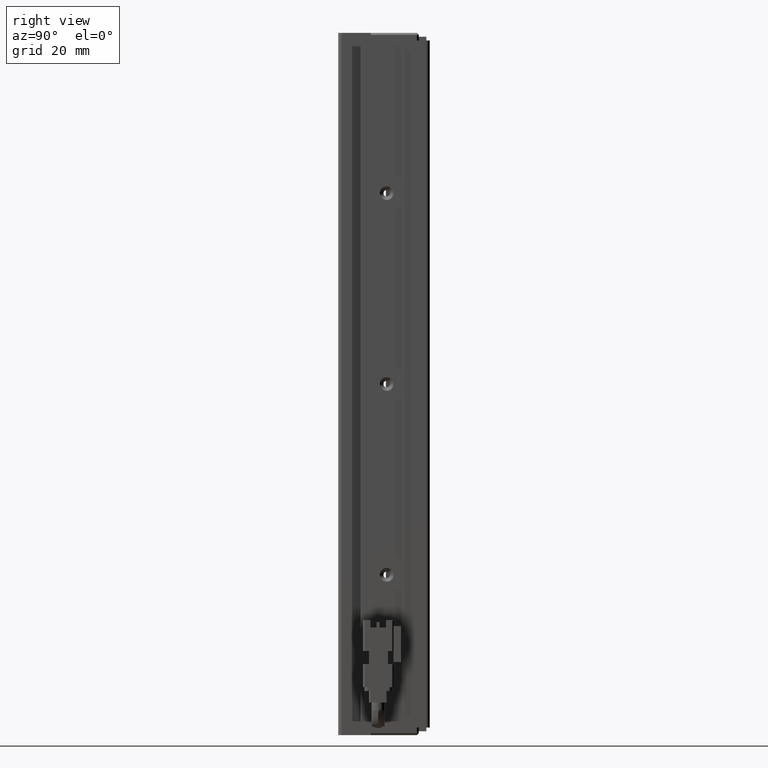
[diagram: clean part render]
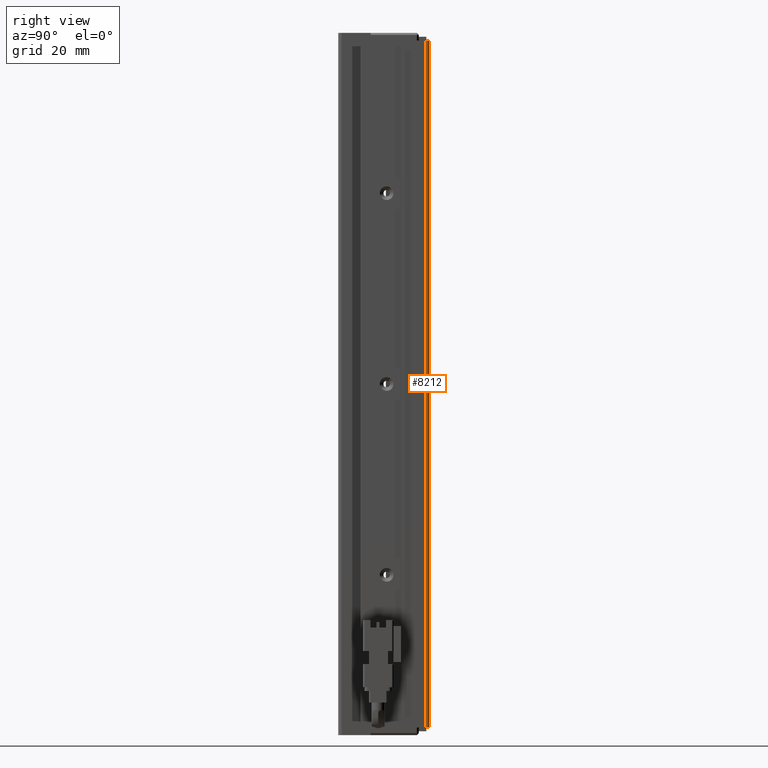
[diagram: same view with one face highlighted and labeled with its STEP entity id]
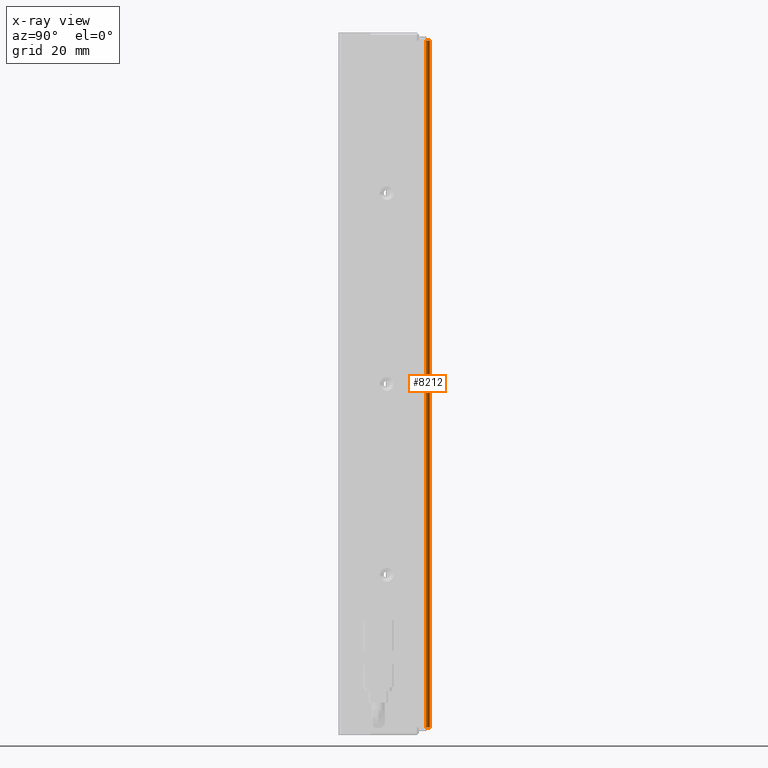
[diagram: x-ray of the same camera — body ghosted, the highlighted face saturated]
A machine part, right view. The second image highlights one B-rep face of the part: STEP entity #8212.
The next image is the same camera in x-ray: the body ghosted, the highlighted face saturated — about 0% of this face is hidden behind the body in this view.
In plain terms, the highlighted cylindrical surface (edge-blend (fillet) strip) has radius 1 mm, axis along (-0, -0, -1).
Its self-contained STEP definition (entity closure, byte-faithful):
#480 = EDGE_LOOP ( 'NONE', ( #24215, #38655, #7555, #39548 ) ) ;
#631 = VERTEX_POINT ( 'NONE', #47677 ) ;
#872 = DIRECTION ( 'NONE',  ( -0.0000000000000000000, -0.0000000000000000000, -1.000000000000000000 ) ) ;
#4918 = EDGE_CURVE ( 'NONE', #25126, #13030, #27752, .T. ) ;
#5937 = CARTESIAN_POINT ( 'NONE',  ( 50.42537974683541800, 34.99073232304837000, -23.00000000000000700 ) ) ;
#6364 = AXIS2_PLACEMENT_3D ( 'NONE', #23525, #38263, #46866 ) ;
#6668 = DIRECTION ( 'NONE',  ( -1.000000000000000000, 0.0000000000000000000, 0.0000000000000000000 ) ) ;
#7555 = ORIENTED_EDGE ( 'NONE', *, *, #36680, .T. ) ;
#8212 = ADVANCED_FACE ( 'NONE', ( #48094 ), #11819, .T. ) ;
#8758 = LINE ( 'NONE', #21711, #18146 ) ;
#11496 = CARTESIAN_POINT ( 'NONE',  ( 50.42537974683541800, 33.99073232304837000, -25.00000000000000700 ) ) ;
#11819 = CYLINDRICAL_SURFACE ( 'NONE', #6364, 1.000000000000000900 ) ;
#13030 = VERTEX_POINT ( 'NONE', #43794 ) ;
#15768 = DIRECTION ( 'NONE',  ( -1.000000000000000000, 0.0000000000000000000, 0.0000000000000000000 ) ) ;
#18146 = VECTOR ( 'NONE', #25941, 1000.000000000000000 ) ;
#18220 = VECTOR ( 'NONE', #47124, 1000.000000000000000 ) ;
#18592 = DIRECTION ( 'NONE',  ( 0.0000000000000000000, 0.0000000000000000000, 1.000000000000000000 ) ) ;
#19963 = LINE ( 'NONE', #5937, #18220 ) ;
#21350 = AXIS2_PLACEMENT_3D ( 'NONE', #11496, #872, #15768 ) ;
#21711 = CARTESIAN_POINT ( 'NONE',  ( 51.42537974683541800, 33.99073232304837000, -23.00000000000000700 ) ) ;
#23525 = CARTESIAN_POINT ( 'NONE',  ( 50.42537974683541800, 33.99073232304837000, -23.00000000000000700 ) ) ;
#23868 = CIRCLE ( 'NONE', #36454, 1.000000000000000900 ) ;
#24215 = ORIENTED_EDGE ( 'NONE', *, *, #47683, .T. ) ;
#25126 = VERTEX_POINT ( 'NONE', #35707 ) ;
#25591 = CARTESIAN_POINT ( 'NONE',  ( 51.42537974683541800, 33.99073232304837000, -205.0000000000000300 ) ) ;
#25941 = DIRECTION ( 'NONE',  ( -0.0000000000000000000, -0.0000000000000000000, -1.000000000000000000 ) ) ;
#27704 = EDGE_CURVE ( 'NONE', #31200, #631, #23868, .T. ) ;
#27752 = CIRCLE ( 'NONE', #21350, 1.000000000000000900 ) ;
#31200 = VERTEX_POINT ( 'NONE', #25591 ) ;
#35707 = CARTESIAN_POINT ( 'NONE',  ( 50.42537974683541800, 34.99073232304837700, -25.00000000000000700 ) ) ;
#36454 = AXIS2_PLACEMENT_3D ( 'NONE', #48486, #18592, #6668 ) ;
#36680 = EDGE_CURVE ( 'NONE', #631, #25126, #19963, .T. ) ;
#38263 = DIRECTION ( 'NONE',  ( -0.0000000000000000000, -0.0000000000000000000, -1.000000000000000000 ) ) ;
#38655 = ORIENTED_EDGE ( 'NONE', *, *, #27704, .T. ) ;
#39548 = ORIENTED_EDGE ( 'NONE', *, *, #4918, .T. ) ;
#43794 = CARTESIAN_POINT ( 'NONE',  ( 51.42537974683541800, 33.99073232304837000, -25.00000000000000700 ) ) ;
#46866 = DIRECTION ( 'NONE',  ( -1.000000000000000000, 0.0000000000000000000, 0.0000000000000000000 ) ) ;
#47124 = DIRECTION ( 'NONE',  ( 0.0000000000000000000, 0.0000000000000000000, 1.000000000000000000 ) ) ;
#47677 = CARTESIAN_POINT ( 'NONE',  ( 50.42537974683541800, 34.99073232304837700, -205.0000000000000300 ) ) ;
#47683 = EDGE_CURVE ( 'NONE', #13030, #31200, #8758, .T. ) ;
#48094 = FACE_OUTER_BOUND ( 'NONE', #480, .T. ) ;
#48486 = CARTESIAN_POINT ( 'NONE',  ( 50.42537974683541800, 33.99073232304837000, -205.0000000000000300 ) ) ;